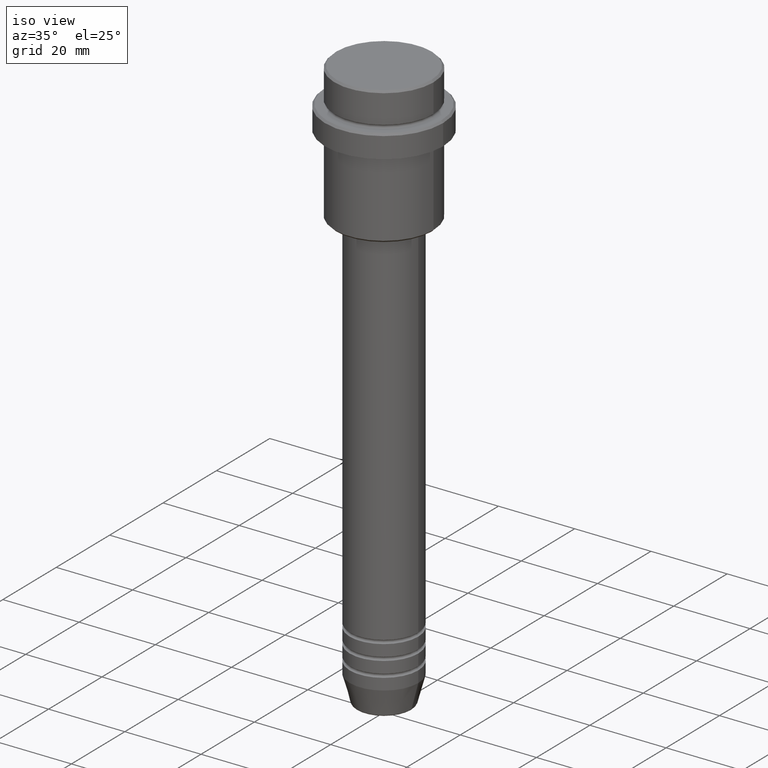
[diagram: clean part render]
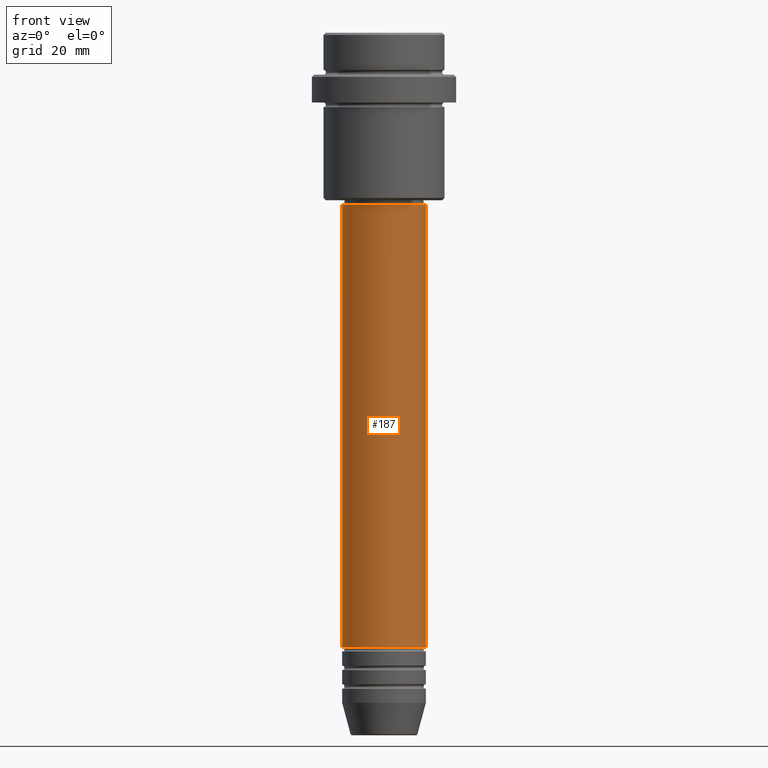
[diagram: tour spotlight — one face highlighted and labeled with its STEP entity id]
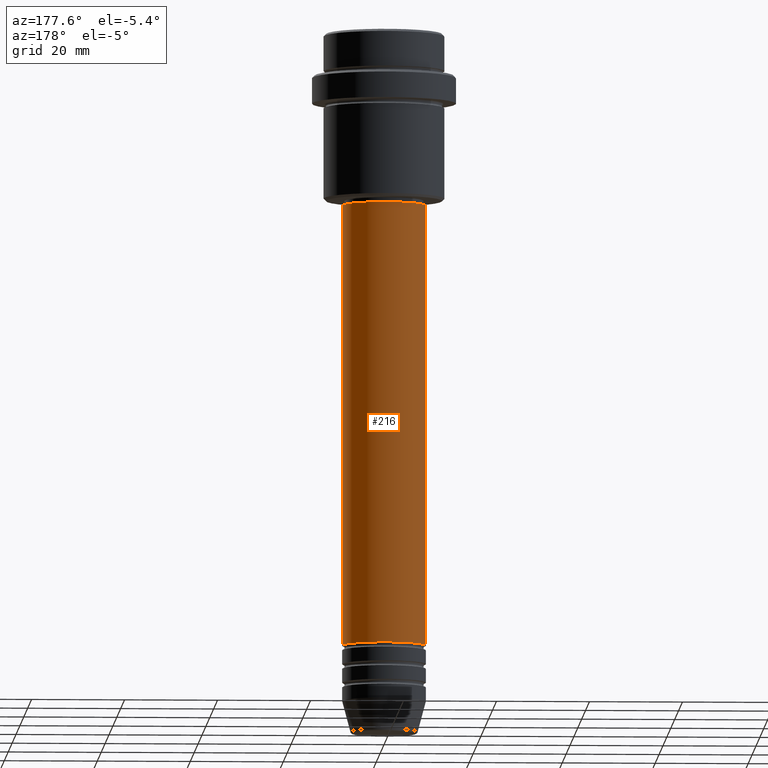
[diagram: tour spotlight — one face highlighted and labeled with its STEP entity id]
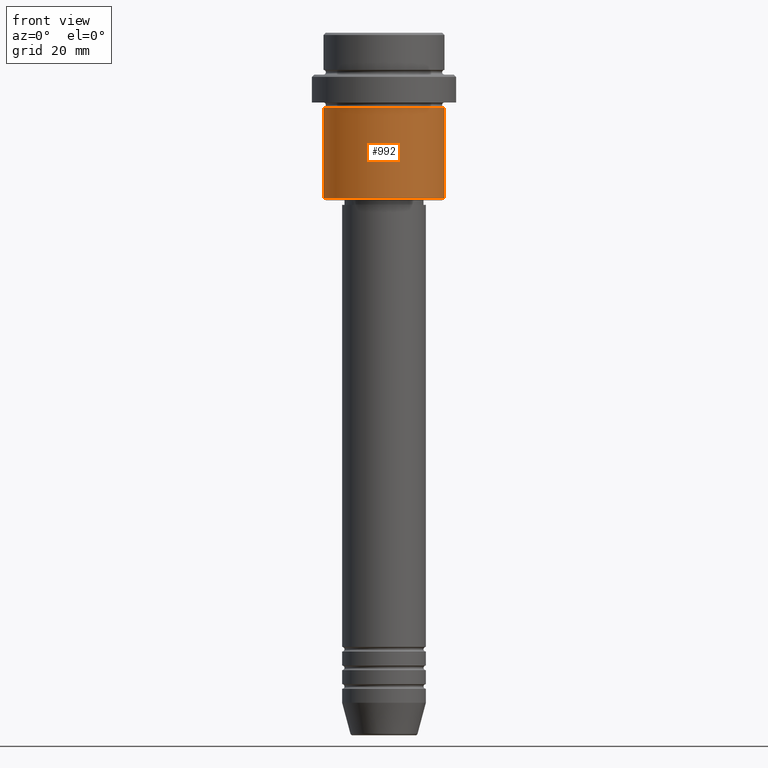
[diagram: tour spotlight — one face highlighted and labeled with its STEP entity id]
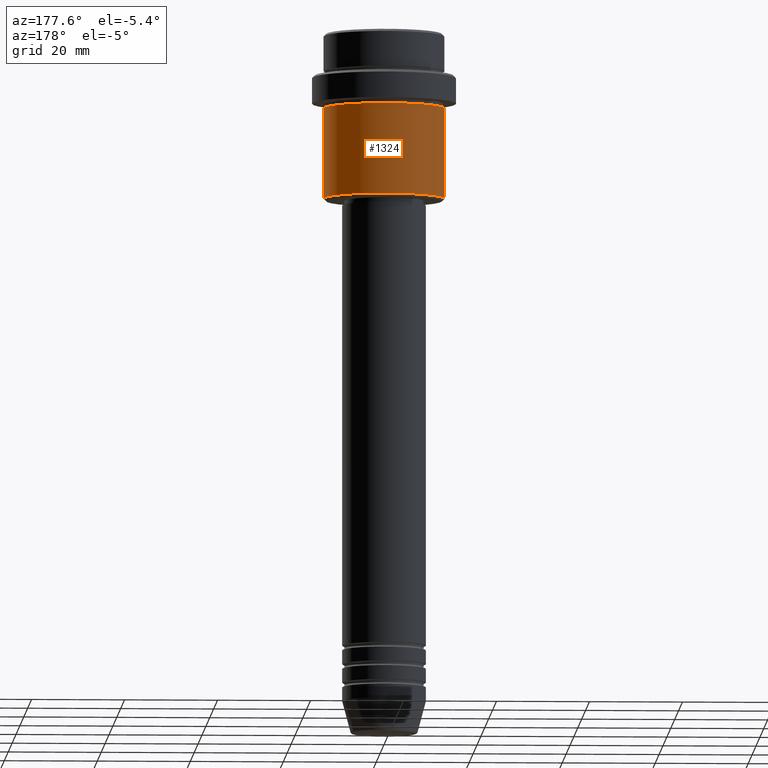
[diagram: tour spotlight — one face highlighted and labeled with its STEP entity id]
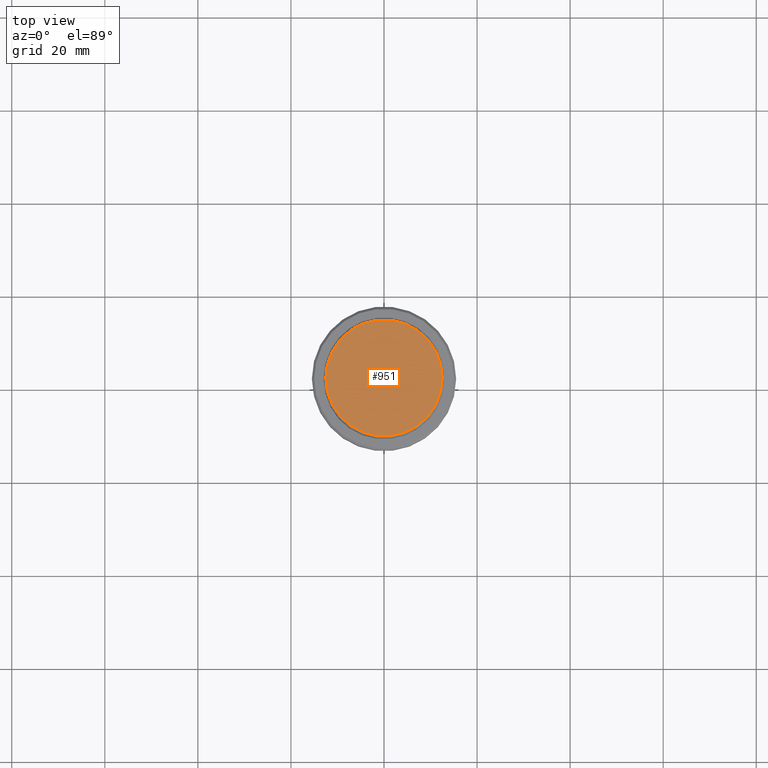
[diagram: tour spotlight — one face highlighted and labeled with its STEP entity id]
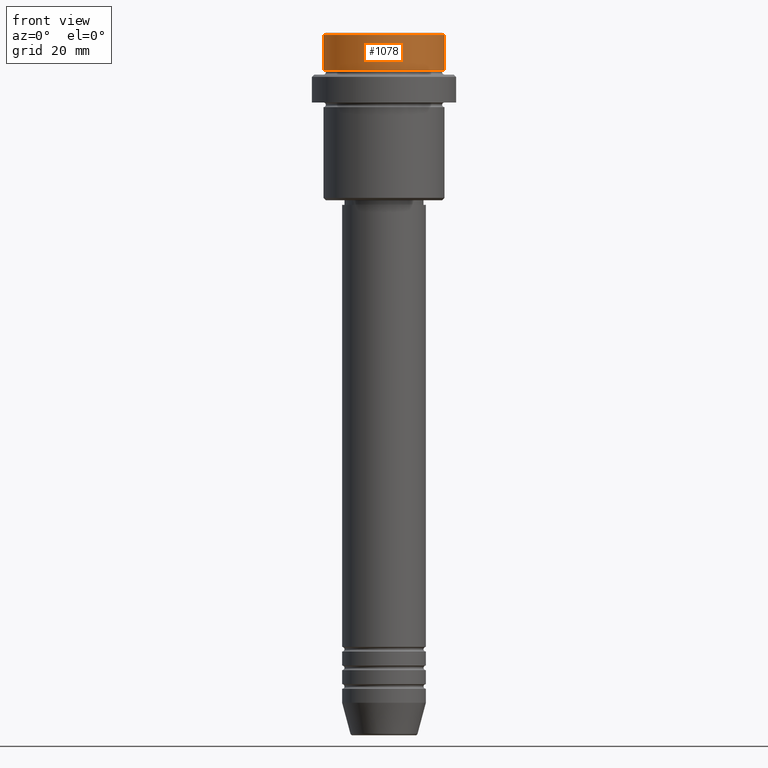
[diagram: tour spotlight — one face highlighted and labeled with its STEP entity id]
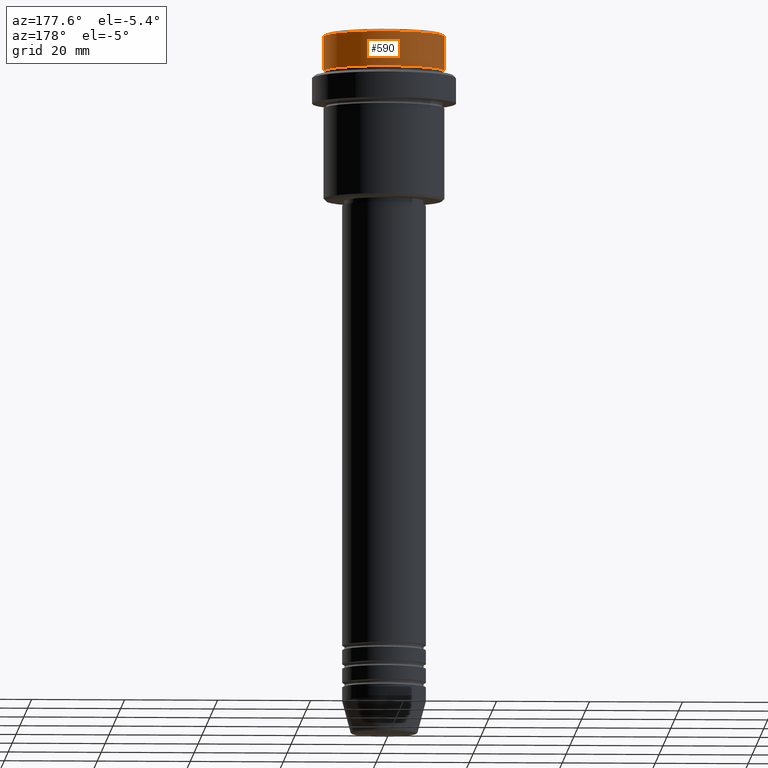
[diagram: tour spotlight — one face highlighted and labeled with its STEP entity id]
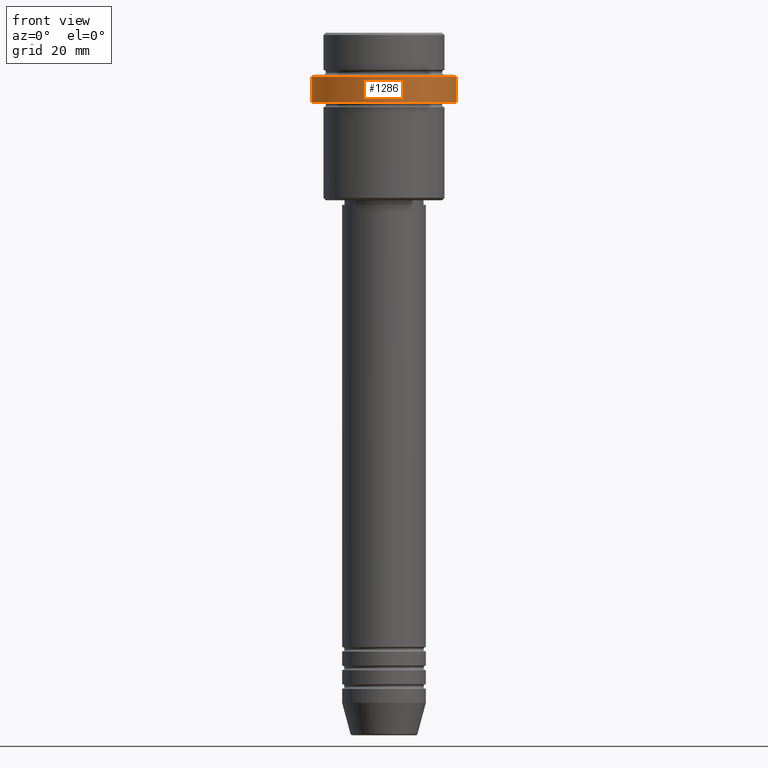
[diagram: tour spotlight — one face highlighted and labeled with its STEP entity id]
A machine part: a face-by-face anatomy tour. The part has 52 B-rep faces; the first image is the clean iso view, then the 8 largest visible faces are spotlighted one at a time (largest first), each with its STEP entity span.

Face 1 — front view, entity #187. In plain terms, the highlighted cylindrical surface (partial cylindrical patch) has radius 9 mm, axis along (-0, -0, 1).
Definition (entity closure, byte-faithful):
#1 = EDGE_CURVE ( 'NONE', #624, #869, #1067, .T. ) ;
#16 = DIRECTION ( 'NONE',  ( -0.000000000000000000, -0.000000000000000000, 1.000000000000000000 ) ) ;
#93 = CARTESIAN_POINT ( 'NONE',  ( -9.000000000000001776, 1.102182119232617911E-15, 0.000000000000000000 ) ) ;
#108 = CARTESIAN_POINT ( 'NONE',  ( 0.000000000000000000, 0.000000000000000000, -131.9999999999998579 ) ) ;
#130 = VERTEX_POINT ( 'NONE', #883 ) ;
#187 = ADVANCED_FACE ( 'NONE', ( #550 ), #1005, .T. ) ;
#212 = AXIS2_PLACEMENT_3D ( 'NONE', #108, #771, #551 ) ;
#250 = CARTESIAN_POINT ( 'NONE',  ( 0.000000000000000000, 0.000000000000000000, 0.000000000000000000 ) ) ;
#273 = LINE ( 'NONE', #1292, #1320 ) ;
#408 = DIRECTION ( 'NONE',  ( 1.000000000000000000, 0.000000000000000000, 0.000000000000000000 ) ) ;
#428 = EDGE_CURVE ( 'NONE', #869, #130, #685, .T. ) ;
#474 = CARTESIAN_POINT ( 'NONE',  ( 9.000000000000000000, 0.000000000000000000, -131.9999999999998579 ) ) ;
#534 = CARTESIAN_POINT ( 'NONE',  ( -9.000000000000001776, 1.102182119232617911E-15, -37.00000000000000000 ) ) ;
#536 = DIRECTION ( 'NONE',  ( -0.000000000000000000, -0.000000000000000000, 1.000000000000000000 ) ) ;
#550 = FACE_OUTER_BOUND ( 'NONE', #1241, .T. ) ;
#551 = DIRECTION ( 'NONE',  ( 1.000000000000000000, 0.000000000000000000, 0.000000000000000000 ) ) ;
#570 = AXIS2_PLACEMENT_3D ( 'NONE', #250, #16, #1217 ) ;
#624 = VERTEX_POINT ( 'NONE', #1100 ) ;
#628 = CARTESIAN_POINT ( 'NONE',  ( 0.000000000000000000, 0.000000000000000000, -37.00000000000000000 ) ) ;
#641 = AXIS2_PLACEMENT_3D ( 'NONE', #628, #950, #408 ) ;
#685 = CIRCLE ( 'NONE', #641, 9.000000000000001776 ) ;
#771 = DIRECTION ( 'NONE',  ( -0.000000000000000000, -0.000000000000000000, 1.000000000000000000 ) ) ;
#773 = ORIENTED_EDGE ( 'NONE', *, *, #1, .F. ) ;
#822 = DIRECTION ( 'NONE',  ( -0.000000000000000000, -0.000000000000000000, 1.000000000000000000 ) ) ;
#869 = VERTEX_POINT ( 'NONE', #534 ) ;
#883 = CARTESIAN_POINT ( 'NONE',  ( 9.000000000000001776, 0.000000000000000000, -37.00000000000000000 ) ) ;
#900 = ORIENTED_EDGE ( 'NONE', *, *, #1235, .T. ) ;
#940 = VECTOR ( 'NONE', #536, 1000.000000000000000 ) ;
#950 = DIRECTION ( 'NONE',  ( -0.000000000000000000, -0.000000000000000000, 1.000000000000000000 ) ) ;
#1005 = CYLINDRICAL_SURFACE ( 'NONE', #570, 9.000000000000001776 ) ;
#1062 = VERTEX_POINT ( 'NONE', #474 ) ;
#1067 = LINE ( 'NONE', #93, #940 ) ;
#1088 = EDGE_CURVE ( 'NONE', #1062, #130, #273, .T. ) ;
#1100 = CARTESIAN_POINT ( 'NONE',  ( -9.000000000000000000, 1.102182119232617714E-15, -131.9999999999998579 ) ) ;
#1132 = ORIENTED_EDGE ( 'NONE', *, *, #428, .F. ) ;
#1217 = DIRECTION ( 'NONE',  ( 1.000000000000000000, 0.000000000000000000, 0.000000000000000000 ) ) ;
#1235 = EDGE_CURVE ( 'NONE', #624, #1062, #1340, .T. ) ;
#1241 = EDGE_LOOP ( 'NONE', ( #773, #900, #1413, #1132 ) ) ;
#1292 = CARTESIAN_POINT ( 'NONE',  ( 9.000000000000001776, 0.000000000000000000, 0.000000000000000000 ) ) ;
#1320 = VECTOR ( 'NONE', #822, 1000.000000000000000 ) ;
#1340 = CIRCLE ( 'NONE', #212, 9.000000000000000000 ) ;
#1413 = ORIENTED_EDGE ( 'NONE', *, *, #1088, .T. ) ;

Face 2 — auxiliary view, entity #216. In plain terms, the highlighted cylindrical surface (partial cylindrical patch) has radius 9 mm, axis along (-0, -0, 1).
Definition (entity closure, byte-faithful):
#1 = EDGE_CURVE ( 'NONE', #624, #869, #1067, .T. ) ;
#72 = CARTESIAN_POINT ( 'NONE',  ( 0.000000000000000000, 0.000000000000000000, -131.9999999999998579 ) ) ;
#93 = CARTESIAN_POINT ( 'NONE',  ( -9.000000000000001776, 1.102182119232617911E-15, 0.000000000000000000 ) ) ;
#118 = AXIS2_PLACEMENT_3D ( 'NONE', #72, #523, #1289 ) ;
#129 = ORIENTED_EDGE ( 'NONE', *, *, #1088, .F. ) ;
#130 = VERTEX_POINT ( 'NONE', #883 ) ;
#135 = AXIS2_PLACEMENT_3D ( 'NONE', #1039, #923, #707 ) ;
#136 = AXIS2_PLACEMENT_3D ( 'NONE', #194, #730, #199 ) ;
#194 = CARTESIAN_POINT ( 'NONE',  ( 0.000000000000000000, 0.000000000000000000, -37.00000000000000000 ) ) ;
#199 = DIRECTION ( 'NONE',  ( 1.000000000000000000, 0.000000000000000000, 0.000000000000000000 ) ) ;
#216 = ADVANCED_FACE ( 'NONE', ( #1389 ), #1166, .T. ) ;
#273 = LINE ( 'NONE', #1292, #1320 ) ;
#377 = EDGE_LOOP ( 'NONE', ( #470, #1229, #496, #129 ) ) ;
#419 = EDGE_CURVE ( 'NONE', #130, #869, #1151, .T. ) ;
#470 = ORIENTED_EDGE ( 'NONE', *, *, #805, .T. ) ;
#474 = CARTESIAN_POINT ( 'NONE',  ( 9.000000000000000000, 0.000000000000000000, -131.9999999999998579 ) ) ;
#496 = ORIENTED_EDGE ( 'NONE', *, *, #419, .F. ) ;
#523 = DIRECTION ( 'NONE',  ( -0.000000000000000000, -0.000000000000000000, 1.000000000000000000 ) ) ;
#534 = CARTESIAN_POINT ( 'NONE',  ( -9.000000000000001776, 1.102182119232617911E-15, -37.00000000000000000 ) ) ;
#536 = DIRECTION ( 'NONE',  ( -0.000000000000000000, -0.000000000000000000, 1.000000000000000000 ) ) ;
#624 = VERTEX_POINT ( 'NONE', #1100 ) ;
#707 = DIRECTION ( 'NONE',  ( 1.000000000000000000, 0.000000000000000000, 0.000000000000000000 ) ) ;
#730 = DIRECTION ( 'NONE',  ( -0.000000000000000000, -0.000000000000000000, 1.000000000000000000 ) ) ;
#805 = EDGE_CURVE ( 'NONE', #1062, #624, #1223, .T. ) ;
#822 = DIRECTION ( 'NONE',  ( -0.000000000000000000, -0.000000000000000000, 1.000000000000000000 ) ) ;
#869 = VERTEX_POINT ( 'NONE', #534 ) ;
#883 = CARTESIAN_POINT ( 'NONE',  ( 9.000000000000001776, 0.000000000000000000, -37.00000000000000000 ) ) ;
#923 = DIRECTION ( 'NONE',  ( -0.000000000000000000, -0.000000000000000000, 1.000000000000000000 ) ) ;
#940 = VECTOR ( 'NONE', #536, 1000.000000000000000 ) ;
#1039 = CARTESIAN_POINT ( 'NONE',  ( 0.000000000000000000, 0.000000000000000000, 0.000000000000000000 ) ) ;
#1062 = VERTEX_POINT ( 'NONE', #474 ) ;
#1067 = LINE ( 'NONE', #93, #940 ) ;
#1088 = EDGE_CURVE ( 'NONE', #1062, #130, #273, .T. ) ;
#1100 = CARTESIAN_POINT ( 'NONE',  ( -9.000000000000000000, 1.102182119232617714E-15, -131.9999999999998579 ) ) ;
#1151 = CIRCLE ( 'NONE', #136, 9.000000000000001776 ) ;
#1166 = CYLINDRICAL_SURFACE ( 'NONE', #135, 9.000000000000001776 ) ;
#1223 = CIRCLE ( 'NONE', #118, 9.000000000000000000 ) ;
#1229 = ORIENTED_EDGE ( 'NONE', *, *, #1, .T. ) ;
#1289 = DIRECTION ( 'NONE',  ( 1.000000000000000000, 0.000000000000000000, 0.000000000000000000 ) ) ;
#1292 = CARTESIAN_POINT ( 'NONE',  ( 9.000000000000001776, 0.000000000000000000, 0.000000000000000000 ) ) ;
#1320 = VECTOR ( 'NONE', #822, 1000.000000000000000 ) ;
#1389 = FACE_OUTER_BOUND ( 'NONE', #377, .T. ) ;

Face 3 — front view, entity #992. In plain terms, the highlighted cylindrical surface (partial cylindrical patch) has radius 13 mm, axis along (-0, -0, 1).
Definition (entity closure, byte-faithful):
#8 = VECTOR ( 'NONE', #902, 1000.000000000000000 ) ;
#18 = ORIENTED_EDGE ( 'NONE', *, *, #1364, .T. ) ;
#29 = DIRECTION ( 'NONE',  ( -0.000000000000000000, -0.000000000000000000, 1.000000000000000000 ) ) ;
#44 = DIRECTION ( 'NONE',  ( -1.000000000000000000, 0.000000000000000000, 0.000000000000000000 ) ) ;
#51 = CYLINDRICAL_SURFACE ( 'NONE', #529, 13.00000000000000000 ) ;
#92 = EDGE_CURVE ( 'NONE', #1029, #231, #1114, .T. ) ;
#105 = DIRECTION ( 'NONE',  ( 1.000000000000000000, 0.000000000000000000, 0.000000000000000000 ) ) ;
#131 = DIRECTION ( 'NONE',  ( -0.000000000000000000, -0.000000000000000000, 1.000000000000000000 ) ) ;
#190 = CIRCLE ( 'NONE', #1276, 13.00000000000000000 ) ;
#231 = VERTEX_POINT ( 'NONE', #279 ) ;
#248 = CARTESIAN_POINT ( 'NONE',  ( 13.00000000000000000, 0.000000000000000000, -15.99999999999997335 ) ) ;
#279 = CARTESIAN_POINT ( 'NONE',  ( -13.00000000000000000, 1.592040838891559095E-15, -15.99999999999997335 ) ) ;
#367 = FACE_OUTER_BOUND ( 'NONE', #880, .T. ) ;
#378 = CARTESIAN_POINT ( 'NONE',  ( -13.00000000000000000, 1.592040838891559095E-15, -35.50000000000000000 ) ) ;
#426 = ORIENTED_EDGE ( 'NONE', *, *, #501, .F. ) ;
#473 = DIRECTION ( 'NONE',  ( -0.000000000000000000, -0.000000000000000000, 1.000000000000000000 ) ) ;
#488 = VERTEX_POINT ( 'NONE', #248 ) ;
#501 = EDGE_CURVE ( 'NONE', #231, #488, #664, .T. ) ;
#512 = EDGE_CURVE ( 'NONE', #809, #488, #999, .T. ) ;
#529 = AXIS2_PLACEMENT_3D ( 'NONE', #798, #556, #105 ) ;
#556 = DIRECTION ( 'NONE',  ( -0.000000000000000000, -0.000000000000000000, 1.000000000000000000 ) ) ;
#560 = ORIENTED_EDGE ( 'NONE', *, *, #512, .T. ) ;
#572 = AXIS2_PLACEMENT_3D ( 'NONE', #1119, #131, #882 ) ;
#664 = CIRCLE ( 'NONE', #572, 13.00000000000000000 ) ;
#719 = ORIENTED_EDGE ( 'NONE', *, *, #92, .F. ) ;
#787 = VECTOR ( 'NONE', #473, 1000.000000000000000 ) ;
#798 = CARTESIAN_POINT ( 'NONE',  ( 0.000000000000000000, 0.000000000000000000, 0.000000000000000000 ) ) ;
#809 = VERTEX_POINT ( 'NONE', #1065 ) ;
#880 = EDGE_LOOP ( 'NONE', ( #719, #18, #560, #426 ) ) ;
#882 = DIRECTION ( 'NONE',  ( 1.000000000000000000, 0.000000000000000000, 0.000000000000000000 ) ) ;
#902 = DIRECTION ( 'NONE',  ( -0.000000000000000000, -0.000000000000000000, 1.000000000000000000 ) ) ;
#992 = ADVANCED_FACE ( 'NONE', ( #367 ), #51, .T. ) ;
#999 = LINE ( 'NONE', #1332, #8 ) ;
#1000 = CARTESIAN_POINT ( 'NONE',  ( -13.00000000000000000, 1.592040838891559095E-15, 0.000000000000000000 ) ) ;
#1029 = VERTEX_POINT ( 'NONE', #378 ) ;
#1065 = CARTESIAN_POINT ( 'NONE',  ( 13.00000000000000000, 0.000000000000000000, -35.50000000000000000 ) ) ;
#1114 = LINE ( 'NONE', #1000, #787 ) ;
#1119 = CARTESIAN_POINT ( 'NONE',  ( 0.000000000000000000, 0.000000000000000000, -15.99999999999997335 ) ) ;
#1123 = CARTESIAN_POINT ( 'NONE',  ( 0.000000000000000000, 0.000000000000000000, -35.50000000000000000 ) ) ;
#1276 = AXIS2_PLACEMENT_3D ( 'NONE', #1123, #29, #44 ) ;
#1332 = CARTESIAN_POINT ( 'NONE',  ( 13.00000000000000000, 0.000000000000000000, 0.000000000000000000 ) ) ;
#1364 = EDGE_CURVE ( 'NONE', #1029, #809, #190, .T. ) ;

Face 4 — auxiliary view, entity #1324. In plain terms, the highlighted cylindrical surface (partial cylindrical patch) has radius 13 mm, axis along (-0, -0, 1).
Definition (entity closure, byte-faithful):
#8 = VECTOR ( 'NONE', #902, 1000.000000000000000 ) ;
#52 = ORIENTED_EDGE ( 'NONE', *, *, #587, .T. ) ;
#89 = EDGE_CURVE ( 'NONE', #488, #231, #165, .T. ) ;
#92 = EDGE_CURVE ( 'NONE', #1029, #231, #1114, .T. ) ;
#95 = EDGE_LOOP ( 'NONE', ( #52, #173, #272, #211 ) ) ;
#115 = FACE_OUTER_BOUND ( 'NONE', #95, .T. ) ;
#121 = CARTESIAN_POINT ( 'NONE',  ( 0.000000000000000000, 0.000000000000000000, -15.99999999999997335 ) ) ;
#165 = CIRCLE ( 'NONE', #1408, 13.00000000000000000 ) ;
#173 = ORIENTED_EDGE ( 'NONE', *, *, #92, .T. ) ;
#211 = ORIENTED_EDGE ( 'NONE', *, *, #512, .F. ) ;
#224 = CYLINDRICAL_SURFACE ( 'NONE', #1081, 13.00000000000000000 ) ;
#231 = VERTEX_POINT ( 'NONE', #279 ) ;
#248 = CARTESIAN_POINT ( 'NONE',  ( 13.00000000000000000, 0.000000000000000000, -15.99999999999997335 ) ) ;
#272 = ORIENTED_EDGE ( 'NONE', *, *, #89, .F. ) ;
#279 = CARTESIAN_POINT ( 'NONE',  ( -13.00000000000000000, 1.592040838891559095E-15, -15.99999999999997335 ) ) ;
#304 = DIRECTION ( 'NONE',  ( -0.000000000000000000, -0.000000000000000000, 1.000000000000000000 ) ) ;
#378 = CARTESIAN_POINT ( 'NONE',  ( -13.00000000000000000, 1.592040838891559095E-15, -35.50000000000000000 ) ) ;
#473 = DIRECTION ( 'NONE',  ( -0.000000000000000000, -0.000000000000000000, 1.000000000000000000 ) ) ;
#488 = VERTEX_POINT ( 'NONE', #248 ) ;
#512 = EDGE_CURVE ( 'NONE', #809, #488, #999, .T. ) ;
#575 = CARTESIAN_POINT ( 'NONE',  ( 0.000000000000000000, 0.000000000000000000, -35.50000000000000000 ) ) ;
#587 = EDGE_CURVE ( 'NONE', #809, #1029, #962, .T. ) ;
#787 = VECTOR ( 'NONE', #473, 1000.000000000000000 ) ;
#791 = DIRECTION ( 'NONE',  ( 1.000000000000000000, 0.000000000000000000, 0.000000000000000000 ) ) ;
#796 = DIRECTION ( 'NONE',  ( -0.000000000000000000, -0.000000000000000000, 1.000000000000000000 ) ) ;
#809 = VERTEX_POINT ( 'NONE', #1065 ) ;
#902 = DIRECTION ( 'NONE',  ( -0.000000000000000000, -0.000000000000000000, 1.000000000000000000 ) ) ;
#959 = DIRECTION ( 'NONE',  ( 1.000000000000000000, 0.000000000000000000, 0.000000000000000000 ) ) ;
#962 = CIRCLE ( 'NONE', #1315, 13.00000000000000000 ) ;
#988 = CARTESIAN_POINT ( 'NONE',  ( 0.000000000000000000, 0.000000000000000000, 0.000000000000000000 ) ) ;
#993 = DIRECTION ( 'NONE',  ( -1.000000000000000000, 0.000000000000000000, 0.000000000000000000 ) ) ;
#999 = LINE ( 'NONE', #1332, #8 ) ;
#1000 = CARTESIAN_POINT ( 'NONE',  ( -13.00000000000000000, 1.592040838891559095E-15, 0.000000000000000000 ) ) ;
#1029 = VERTEX_POINT ( 'NONE', #378 ) ;
#1065 = CARTESIAN_POINT ( 'NONE',  ( 13.00000000000000000, 0.000000000000000000, -35.50000000000000000 ) ) ;
#1081 = AXIS2_PLACEMENT_3D ( 'NONE', #988, #304, #959 ) ;
#1114 = LINE ( 'NONE', #1000, #787 ) ;
#1122 = DIRECTION ( 'NONE',  ( -0.000000000000000000, -0.000000000000000000, 1.000000000000000000 ) ) ;
#1315 = AXIS2_PLACEMENT_3D ( 'NONE', #575, #796, #993 ) ;
#1324 = ADVANCED_FACE ( 'NONE', ( #115 ), #224, .T. ) ;
#1332 = CARTESIAN_POINT ( 'NONE',  ( 13.00000000000000000, 0.000000000000000000, 0.000000000000000000 ) ) ;
#1408 = AXIS2_PLACEMENT_3D ( 'NONE', #121, #1122, #791 ) ;

Face 5 — top view, entity #951. In plain terms, the highlighted planar face has unit normal (0, -0, 1).
Definition (entity closure, byte-faithful):
#10 = FACE_OUTER_BOUND ( 'NONE', #1252, .T. ) ;
#24 = ORIENTED_EDGE ( 'NONE', *, *, #1008, .T. ) ;
#132 = DIRECTION ( 'NONE',  ( 1.000000000000000000, 0.000000000000000000, 0.000000000000000000 ) ) ;
#138 = AXIS2_PLACEMENT_3D ( 'NONE', #144, #1019, #906 ) ;
#144 = CARTESIAN_POINT ( 'NONE',  ( 0.000000000000000000, 0.000000000000000000, 0.000000000000000000 ) ) ;
#269 = DIRECTION ( 'NONE',  ( 1.000000000000000000, 0.000000000000000000, 0.000000000000000000 ) ) ;
#332 = CARTESIAN_POINT ( 'NONE',  ( 12.49999999999997158, 1.561424668912873336E-15, 0.000000000000000000 ) ) ;
#461 = CIRCLE ( 'NONE', #138, 12.49999999999997158 ) ;
#466 = CARTESIAN_POINT ( 'NONE',  ( 0.000000000000000000, 0.000000000000000000, 0.000000000000000000 ) ) ;
#482 = AXIS2_PLACEMENT_3D ( 'NONE', #1250, #980, #269 ) ;
#586 = PLANE ( 'NONE',  #482 ) ;
#617 = VERTEX_POINT ( 'NONE', #332 ) ;
#648 = CIRCLE ( 'NONE', #717, 12.49999999999997158 ) ;
#681 = DIRECTION ( 'NONE',  ( -0.000000000000000000, -0.000000000000000000, 1.000000000000000000 ) ) ;
#695 = ORIENTED_EDGE ( 'NONE', *, *, #1357, .T. ) ;
#717 = AXIS2_PLACEMENT_3D ( 'NONE', #466, #681, #132 ) ;
#906 = DIRECTION ( 'NONE',  ( 1.000000000000000000, 0.000000000000000000, 0.000000000000000000 ) ) ;
#951 = ADVANCED_FACE ( 'NONE', ( #10 ), #586, .T. ) ;
#980 = DIRECTION ( 'NONE',  ( 0.000000000000000000, -0.000000000000000000, 1.000000000000000000 ) ) ;
#1008 = EDGE_CURVE ( 'NONE', #617, #1301, #461, .T. ) ;
#1019 = DIRECTION ( 'NONE',  ( -0.000000000000000000, -0.000000000000000000, 1.000000000000000000 ) ) ;
#1095 = CARTESIAN_POINT ( 'NONE',  ( -12.49999999999997158, 0.000000000000000000, 0.000000000000000000 ) ) ;
#1250 = CARTESIAN_POINT ( 'NONE',  ( 0.000000000000000000, 0.000000000000000000, 0.000000000000000000 ) ) ;
#1252 = EDGE_LOOP ( 'NONE', ( #695, #24 ) ) ;
#1301 = VERTEX_POINT ( 'NONE', #1095 ) ;
#1357 = EDGE_CURVE ( 'NONE', #1301, #617, #648, .T. ) ;

Face 6 — front view, entity #1078. In plain terms, the highlighted cylindrical surface (partial cylindrical patch) has radius 13 mm, axis along (-0, -0, 1).
Definition (entity closure, byte-faithful):
#15 = VECTOR ( 'NONE', #612, 1000.000000000000000 ) ;
#56 = CIRCLE ( 'NONE', #1381, 12.99999999999999822 ) ;
#168 = ORIENTED_EDGE ( 'NONE', *, *, #238, .T. ) ;
#238 = EDGE_CURVE ( 'NONE', #322, #1307, #943, .T. ) ;
#322 = VERTEX_POINT ( 'NONE', #971 ) ;
#353 = CARTESIAN_POINT ( 'NONE',  ( 0.000000000000000000, 0.000000000000000000, -0.5000000000000176525 ) ) ;
#383 = CARTESIAN_POINT ( 'NONE',  ( -12.99999999999999822, 1.592040838891558898E-15, -7.999999999999998224 ) ) ;
#458 = AXIS2_PLACEMENT_3D ( 'NONE', #353, #779, #1327 ) ;
#471 = EDGE_CURVE ( 'NONE', #1074, #1118, #557, .T. ) ;
#557 = LINE ( 'NONE', #983, #1221 ) ;
#568 = EDGE_CURVE ( 'NONE', #1307, #1118, #782, .T. ) ;
#604 = DIRECTION ( 'NONE',  ( 1.000000000000000000, 0.000000000000000000, 0.000000000000000000 ) ) ;
#612 = DIRECTION ( 'NONE',  ( -0.000000000000000000, -0.000000000000000000, 1.000000000000000000 ) ) ;
#733 = DIRECTION ( 'NONE',  ( -0.000000000000000000, -0.000000000000000000, 1.000000000000000000 ) ) ;
#752 = ORIENTED_EDGE ( 'NONE', *, *, #974, .T. ) ;
#762 = CARTESIAN_POINT ( 'NONE',  ( 12.99999999999999822, 0.000000000000000000, -0.5000000000000176525 ) ) ;
#770 = EDGE_LOOP ( 'NONE', ( #1291, #752, #168, #917 ) ) ;
#774 = DIRECTION ( 'NONE',  ( 1.000000000000000000, 0.000000000000000000, 0.000000000000000000 ) ) ;
#779 = DIRECTION ( 'NONE',  ( 0.000000000000000000, 0.000000000000000000, -1.000000000000000000 ) ) ;
#782 = CIRCLE ( 'NONE', #458, 12.99999999999999822 ) ;
#816 = CARTESIAN_POINT ( 'NONE',  ( 12.99999999999999822, 0.000000000000000000, 0.000000000000000000 ) ) ;
#838 = CYLINDRICAL_SURFACE ( 'NONE', #1155, 12.99999999999999822 ) ;
#892 = DIRECTION ( 'NONE',  ( -0.000000000000000000, -0.000000000000000000, 1.000000000000000000 ) ) ;
#917 = ORIENTED_EDGE ( 'NONE', *, *, #568, .T. ) ;
#943 = LINE ( 'NONE', #816, #15 ) ;
#971 = CARTESIAN_POINT ( 'NONE',  ( 12.99999999999999822, 0.000000000000000000, -7.999999999999998224 ) ) ;
#974 = EDGE_CURVE ( 'NONE', #1074, #322, #56, .T. ) ;
#983 = CARTESIAN_POINT ( 'NONE',  ( -12.99999999999999822, 1.592040838891558898E-15, 0.000000000000000000 ) ) ;
#1063 = FACE_OUTER_BOUND ( 'NONE', #770, .T. ) ;
#1074 = VERTEX_POINT ( 'NONE', #383 ) ;
#1078 = ADVANCED_FACE ( 'NONE', ( #1063 ), #838, .T. ) ;
#1092 = DIRECTION ( 'NONE',  ( -0.000000000000000000, -0.000000000000000000, 1.000000000000000000 ) ) ;
#1097 = CARTESIAN_POINT ( 'NONE',  ( 0.000000000000000000, 0.000000000000000000, -7.999999999999998224 ) ) ;
#1118 = VERTEX_POINT ( 'NONE', #1264 ) ;
#1155 = AXIS2_PLACEMENT_3D ( 'NONE', #1167, #733, #604 ) ;
#1167 = CARTESIAN_POINT ( 'NONE',  ( 0.000000000000000000, 0.000000000000000000, 0.000000000000000000 ) ) ;
#1221 = VECTOR ( 'NONE', #892, 1000.000000000000000 ) ;
#1264 = CARTESIAN_POINT ( 'NONE',  ( -12.99999999999999822, 1.592040838891558898E-15, -0.5000000000000176525 ) ) ;
#1291 = ORIENTED_EDGE ( 'NONE', *, *, #471, .F. ) ;
#1307 = VERTEX_POINT ( 'NONE', #762 ) ;
#1327 = DIRECTION ( 'NONE',  ( 1.000000000000000000, 0.000000000000000000, 0.000000000000000000 ) ) ;
#1381 = AXIS2_PLACEMENT_3D ( 'NONE', #1097, #1092, #774 ) ;

Face 7 — auxiliary view, entity #590. In plain terms, the highlighted cylindrical surface (partial cylindrical patch) has radius 13 mm, axis along (-0, -0, 1).
Definition (entity closure, byte-faithful):
#15 = VECTOR ( 'NONE', #612, 1000.000000000000000 ) ;
#125 = DIRECTION ( 'NONE',  ( 1.000000000000000000, 0.000000000000000000, 0.000000000000000000 ) ) ;
#160 = DIRECTION ( 'NONE',  ( -0.000000000000000000, -0.000000000000000000, 1.000000000000000000 ) ) ;
#184 = AXIS2_PLACEMENT_3D ( 'NONE', #1014, #228, #125 ) ;
#188 = CIRCLE ( 'NONE', #1200, 12.99999999999999822 ) ;
#202 = ORIENTED_EDGE ( 'NONE', *, *, #471, .T. ) ;
#218 = ORIENTED_EDGE ( 'NONE', *, *, #1238, .T. ) ;
#228 = DIRECTION ( 'NONE',  ( -0.000000000000000000, -0.000000000000000000, 1.000000000000000000 ) ) ;
#238 = EDGE_CURVE ( 'NONE', #322, #1307, #943, .T. ) ;
#239 = FACE_OUTER_BOUND ( 'NONE', #1203, .T. ) ;
#271 = DIRECTION ( 'NONE',  ( 1.000000000000000000, 0.000000000000000000, 0.000000000000000000 ) ) ;
#317 = EDGE_CURVE ( 'NONE', #322, #1074, #328, .T. ) ;
#322 = VERTEX_POINT ( 'NONE', #971 ) ;
#328 = CIRCLE ( 'NONE', #1130, 12.99999999999999822 ) ;
#383 = CARTESIAN_POINT ( 'NONE',  ( -12.99999999999999822, 1.592040838891558898E-15, -7.999999999999998224 ) ) ;
#471 = EDGE_CURVE ( 'NONE', #1074, #1118, #557, .T. ) ;
#543 = DIRECTION ( 'NONE',  ( 0.000000000000000000, 0.000000000000000000, -1.000000000000000000 ) ) ;
#557 = LINE ( 'NONE', #983, #1221 ) ;
#566 = ORIENTED_EDGE ( 'NONE', *, *, #238, .F. ) ;
#590 = ADVANCED_FACE ( 'NONE', ( #239 ), #1338, .T. ) ;
#612 = DIRECTION ( 'NONE',  ( -0.000000000000000000, -0.000000000000000000, 1.000000000000000000 ) ) ;
#697 = ORIENTED_EDGE ( 'NONE', *, *, #317, .T. ) ;
#762 = CARTESIAN_POINT ( 'NONE',  ( 12.99999999999999822, 0.000000000000000000, -0.5000000000000176525 ) ) ;
#816 = CARTESIAN_POINT ( 'NONE',  ( 12.99999999999999822, 0.000000000000000000, 0.000000000000000000 ) ) ;
#862 = CARTESIAN_POINT ( 'NONE',  ( 0.000000000000000000, 0.000000000000000000, -0.5000000000000176525 ) ) ;
#877 = DIRECTION ( 'NONE',  ( 1.000000000000000000, 0.000000000000000000, 0.000000000000000000 ) ) ;
#892 = DIRECTION ( 'NONE',  ( -0.000000000000000000, -0.000000000000000000, 1.000000000000000000 ) ) ;
#943 = LINE ( 'NONE', #816, #15 ) ;
#971 = CARTESIAN_POINT ( 'NONE',  ( 12.99999999999999822, 0.000000000000000000, -7.999999999999998224 ) ) ;
#983 = CARTESIAN_POINT ( 'NONE',  ( -12.99999999999999822, 1.592040838891558898E-15, 0.000000000000000000 ) ) ;
#1014 = CARTESIAN_POINT ( 'NONE',  ( 0.000000000000000000, 0.000000000000000000, 0.000000000000000000 ) ) ;
#1074 = VERTEX_POINT ( 'NONE', #383 ) ;
#1118 = VERTEX_POINT ( 'NONE', #1264 ) ;
#1130 = AXIS2_PLACEMENT_3D ( 'NONE', #1262, #160, #271 ) ;
#1200 = AXIS2_PLACEMENT_3D ( 'NONE', #862, #543, #877 ) ;
#1203 = EDGE_LOOP ( 'NONE', ( #697, #202, #218, #566 ) ) ;
#1221 = VECTOR ( 'NONE', #892, 1000.000000000000000 ) ;
#1238 = EDGE_CURVE ( 'NONE', #1118, #1307, #188, .T. ) ;
#1262 = CARTESIAN_POINT ( 'NONE',  ( 0.000000000000000000, 0.000000000000000000, -7.999999999999998224 ) ) ;
#1264 = CARTESIAN_POINT ( 'NONE',  ( -12.99999999999999822, 1.592040838891558898E-15, -0.5000000000000176525 ) ) ;
#1307 = VERTEX_POINT ( 'NONE', #762 ) ;
#1338 = CYLINDRICAL_SURFACE ( 'NONE', #184, 12.99999999999999822 ) ;

Face 8 — front view, entity #1286. In plain terms, the highlighted cylindrical surface (partial cylindrical patch) has radius 15.5 mm, axis along (-0, -0, 1).
Definition (entity closure, byte-faithful):
#7 = CYLINDRICAL_SURFACE ( 'NONE', #901, 15.50000000000000000 ) ;
#96 = LINE ( 'NONE', #961, #350 ) ;
#113 = DIRECTION ( 'NONE',  ( 1.000000000000000000, 0.000000000000000000, 0.000000000000000000 ) ) ;
#128 = EDGE_CURVE ( 'NONE', #263, #1344, #776, .T. ) ;
#152 = ORIENTED_EDGE ( 'NONE', *, *, #789, .F. ) ;
#207 = CARTESIAN_POINT ( 'NONE',  ( -15.50000000000000000, 1.898202538678397557E-15, -9.499999999999971578 ) ) ;
#209 = AXIS2_PLACEMENT_3D ( 'NONE', #661, #872, #113 ) ;
#237 = VECTOR ( 'NONE', #1237, 1000.000000000000000 ) ;
#263 = VERTEX_POINT ( 'NONE', #1135 ) ;
#308 = DIRECTION ( 'NONE',  ( 0.000000000000000000, 0.000000000000000000, -1.000000000000000000 ) ) ;
#319 = DIRECTION ( 'NONE',  ( -0.000000000000000000, -0.000000000000000000, 1.000000000000000000 ) ) ;
#330 = EDGE_CURVE ( 'NONE', #1344, #1310, #1053, .T. ) ;
#350 = VECTOR ( 'NONE', #319, 1000.000000000000000 ) ;
#401 = CARTESIAN_POINT ( 'NONE',  ( -15.50000000000000000, 1.898202538678397557E-15, -14.99999999999998757 ) ) ;
#416 = DIRECTION ( 'NONE',  ( 1.000000000000000000, 0.000000000000000000, 0.000000000000000000 ) ) ;
#445 = CARTESIAN_POINT ( 'NONE',  ( 0.000000000000000000, 0.000000000000000000, 0.000000000000000000 ) ) ;
#609 = ORIENTED_EDGE ( 'NONE', *, *, #330, .T. ) ;
#614 = EDGE_CURVE ( 'NONE', #777, #263, #918, .T. ) ;
#630 = DIRECTION ( 'NONE',  ( -0.000000000000000000, -0.000000000000000000, 1.000000000000000000 ) ) ;
#661 = CARTESIAN_POINT ( 'NONE',  ( 0.000000000000000000, 0.000000000000000000, -14.99999999999998757 ) ) ;
#734 = ORIENTED_EDGE ( 'NONE', *, *, #128, .T. ) ;
#747 = CARTESIAN_POINT ( 'NONE',  ( 15.50000000000000000, 0.000000000000000000, -9.499999999999971578 ) ) ;
#776 = LINE ( 'NONE', #1231, #237 ) ;
#777 = VERTEX_POINT ( 'NONE', #401 ) ;
#784 = EDGE_LOOP ( 'NONE', ( #152, #1137, #734, #609 ) ) ;
#789 = EDGE_CURVE ( 'NONE', #777, #1310, #96, .T. ) ;
#872 = DIRECTION ( 'NONE',  ( -0.000000000000000000, -0.000000000000000000, 1.000000000000000000 ) ) ;
#901 = AXIS2_PLACEMENT_3D ( 'NONE', #445, #630, #416 ) ;
#918 = CIRCLE ( 'NONE', #209, 15.50000000000000000 ) ;
#961 = CARTESIAN_POINT ( 'NONE',  ( -15.50000000000000000, 1.898202538678397557E-15, 0.000000000000000000 ) ) ;
#1035 = AXIS2_PLACEMENT_3D ( 'NONE', #1415, #308, #1171 ) ;
#1053 = CIRCLE ( 'NONE', #1035, 15.50000000000000000 ) ;
#1135 = CARTESIAN_POINT ( 'NONE',  ( 15.50000000000000000, 0.000000000000000000, -14.99999999999998757 ) ) ;
#1137 = ORIENTED_EDGE ( 'NONE', *, *, #614, .T. ) ;
#1171 = DIRECTION ( 'NONE',  ( 1.000000000000000000, 0.000000000000000000, 0.000000000000000000 ) ) ;
#1193 = FACE_OUTER_BOUND ( 'NONE', #784, .T. ) ;
#1231 = CARTESIAN_POINT ( 'NONE',  ( 15.50000000000000000, 0.000000000000000000, 0.000000000000000000 ) ) ;
#1237 = DIRECTION ( 'NONE',  ( -0.000000000000000000, -0.000000000000000000, 1.000000000000000000 ) ) ;
#1286 = ADVANCED_FACE ( 'NONE', ( #1193 ), #7, .T. ) ;
#1310 = VERTEX_POINT ( 'NONE', #207 ) ;
#1344 = VERTEX_POINT ( 'NONE', #747 ) ;
#1415 = CARTESIAN_POINT ( 'NONE',  ( 0.000000000000000000, 0.000000000000000000, -9.499999999999971578 ) ) ;